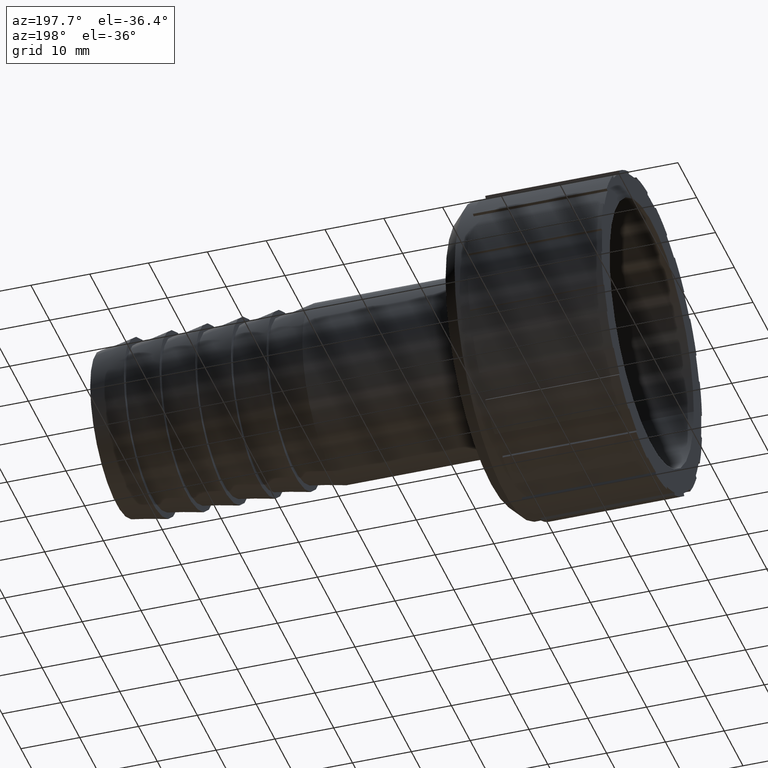
[diagram: clean part render]
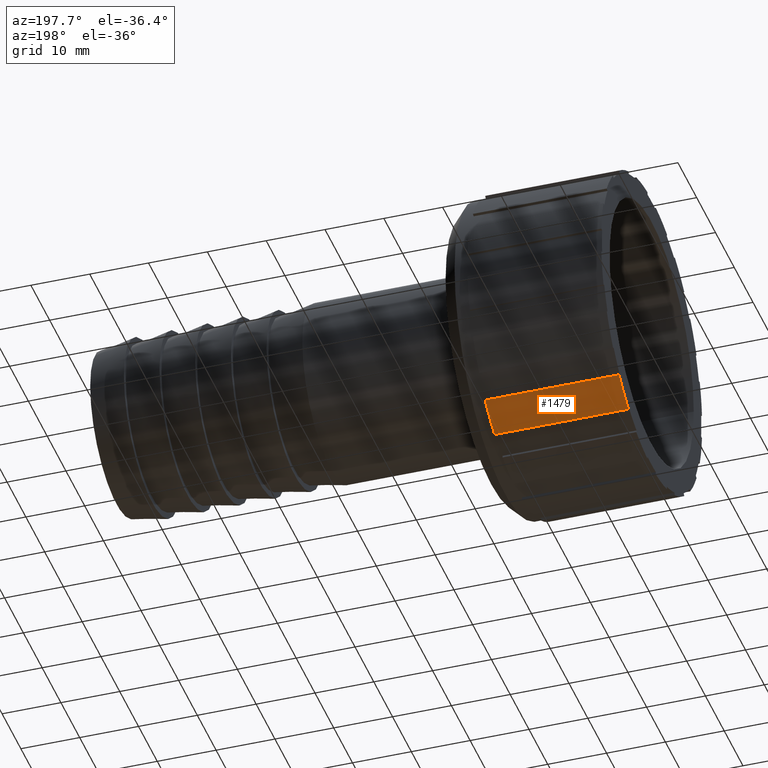
[diagram: same view with one face highlighted and labeled with its STEP entity id]
A machine part, auxiliary view. The second image highlights one B-rep face of the part: STEP entity #1479.
In plain terms, the highlighted cylindrical surface (partial cylindrical patch) has radius 26.907 mm, axis along (-1, 0, 0).
Its self-contained STEP definition (entity closure, byte-faithful):
#28=CYLINDRICAL_SURFACE('',#1630,26.907);
#77=CIRCLE('',#1558,26.907);
#107=CIRCLE('',#1595,26.907);
#198=FACE_OUTER_BOUND('',#283,.T.);
#283=EDGE_LOOP('',(#1220,#1221,#1222,#1223));
#402=LINE('',#2302,#530);
#408=LINE('',#2314,#536);
#530=VECTOR('',#1786,22.75);
#536=VECTOR('',#1794,22.75);
#657=VERTEX_POINT('',#2298);
#659=VERTEX_POINT('',#2301);
#662=VERTEX_POINT('',#2308);
#664=VERTEX_POINT('',#2312);
#805=EDGE_CURVE('',#659,#657,#402,.T.);
#811=EDGE_CURVE('',#662,#664,#408,.T.);
#873=EDGE_CURVE('',#662,#657,#77,.T.);
#904=EDGE_CURVE('',#664,#659,#107,.T.);
#1220=ORIENTED_EDGE('',*,*,#805,.T.);
#1221=ORIENTED_EDGE('',*,*,#873,.F.);
#1222=ORIENTED_EDGE('',*,*,#811,.T.);
#1223=ORIENTED_EDGE('',*,*,#904,.T.);
#1479=ADVANCED_FACE('',(#198),#28,.T.);
#1558=AXIS2_PLACEMENT_3D('',#2436,#1895,#1896);
#1595=AXIS2_PLACEMENT_3D('',#2477,#1970,#1971);
#1630=AXIS2_PLACEMENT_3D('',#2516,#2042,#2043);
#1786=DIRECTION('',(-1.,0.,0.));
#1794=DIRECTION('',(1.,0.,0.));
#1895=DIRECTION('center_axis',(-1.,0.,0.));
#1896=DIRECTION('ref_axis',(0.,0.,1.));
#1970=DIRECTION('center_axis',(-1.,0.,0.));
#1971=DIRECTION('ref_axis',(0.,0.,1.));
#2042=DIRECTION('center_axis',(-1.,0.,0.));
#2043=DIRECTION('ref_axis',(0.,-1.,0.));
#2298=CARTESIAN_POINT('',(0.,12.3326167118549,-23.9142889093211));
#2301=CARTESIAN_POINT('',(22.75,12.3326167118549,-23.9142889093211));
#2302=CARTESIAN_POINT('',(11.375,12.3326167118549,-23.9142889093211));
#2308=CARTESIAN_POINT('',(0.,17.3744339645477,-20.5454543247788));
#2312=CARTESIAN_POINT('',(22.75,17.3744339645477,-20.5454543247788));
#2314=CARTESIAN_POINT('',(11.375,17.3744339645477,-20.5454543247788));
#2436=CARTESIAN_POINT('Origin',(0.,0.,0.));
#2477=CARTESIAN_POINT('Origin',(22.75,0.,0.));
#2516=CARTESIAN_POINT('Origin',(11.375,0.,0.));